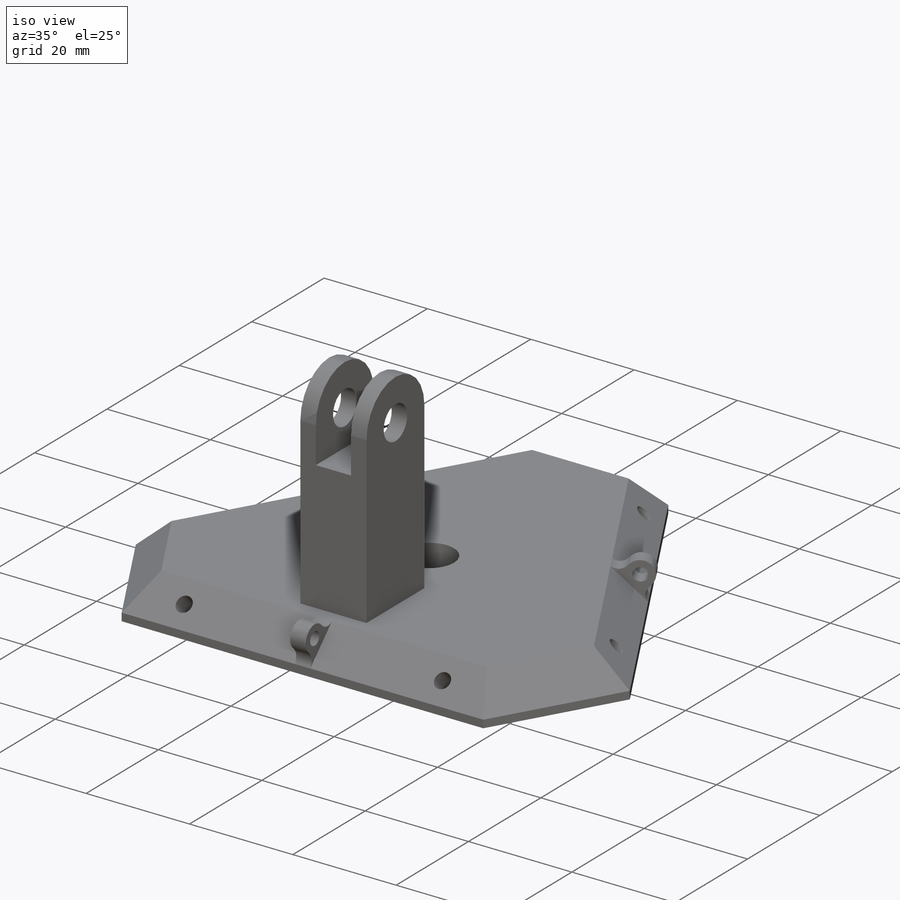
[diagram: iso view]
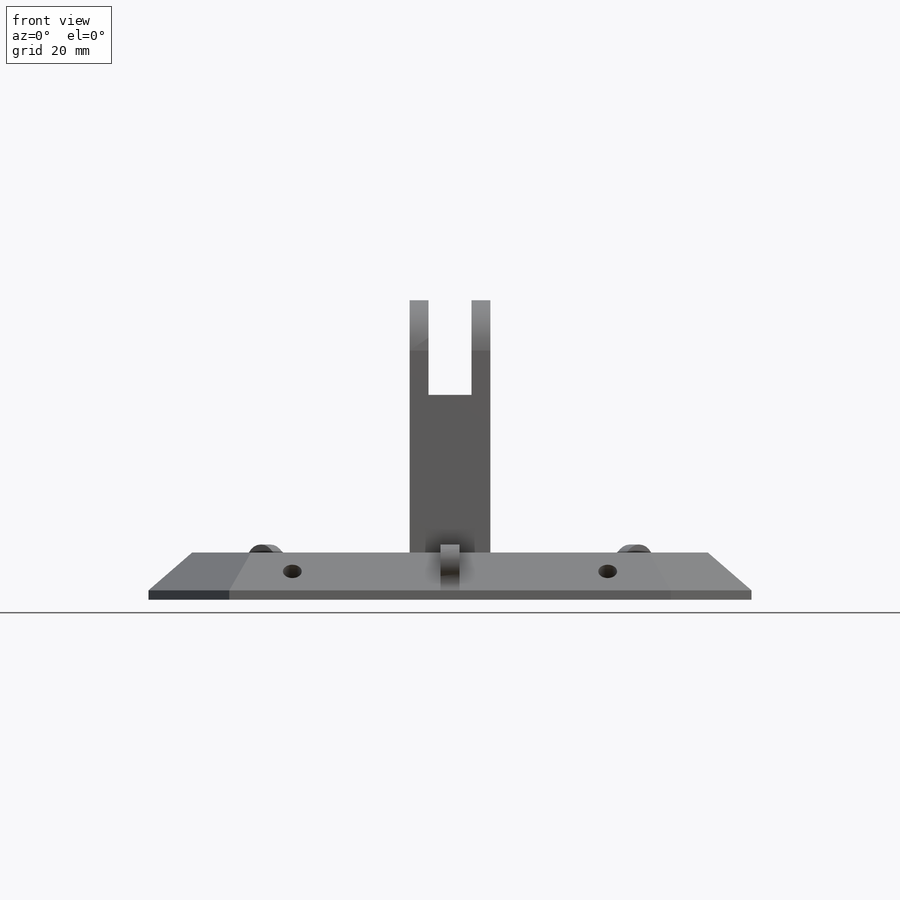
[diagram: front view]
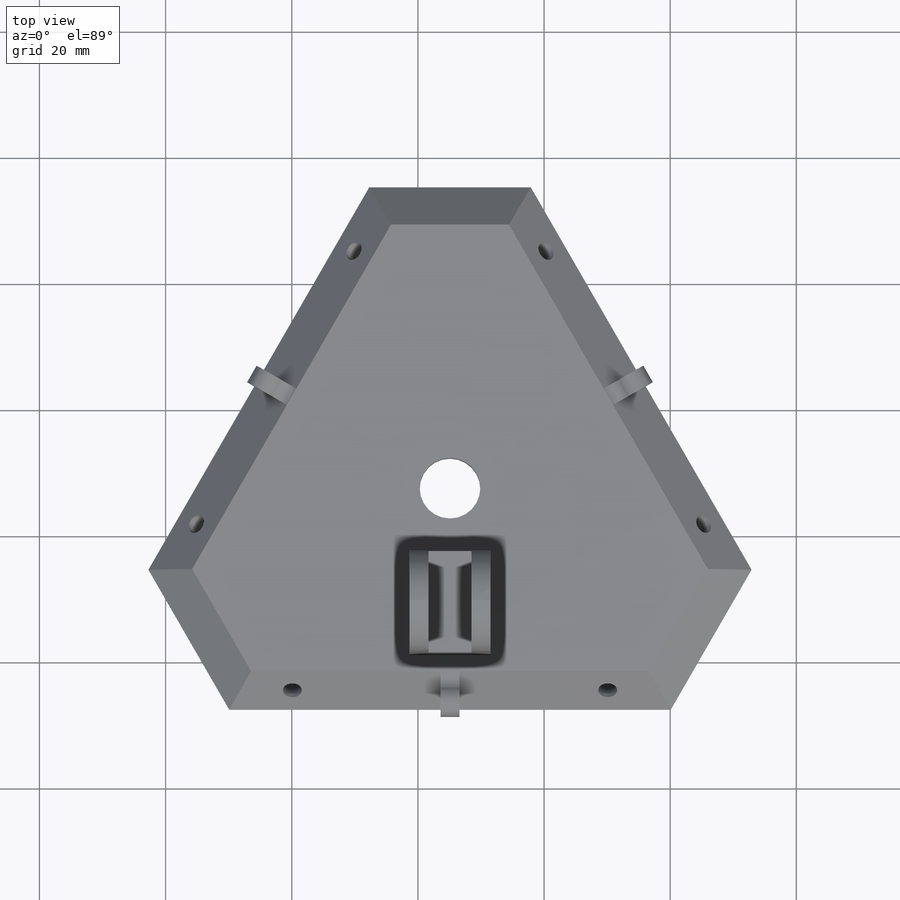
[diagram: top view]
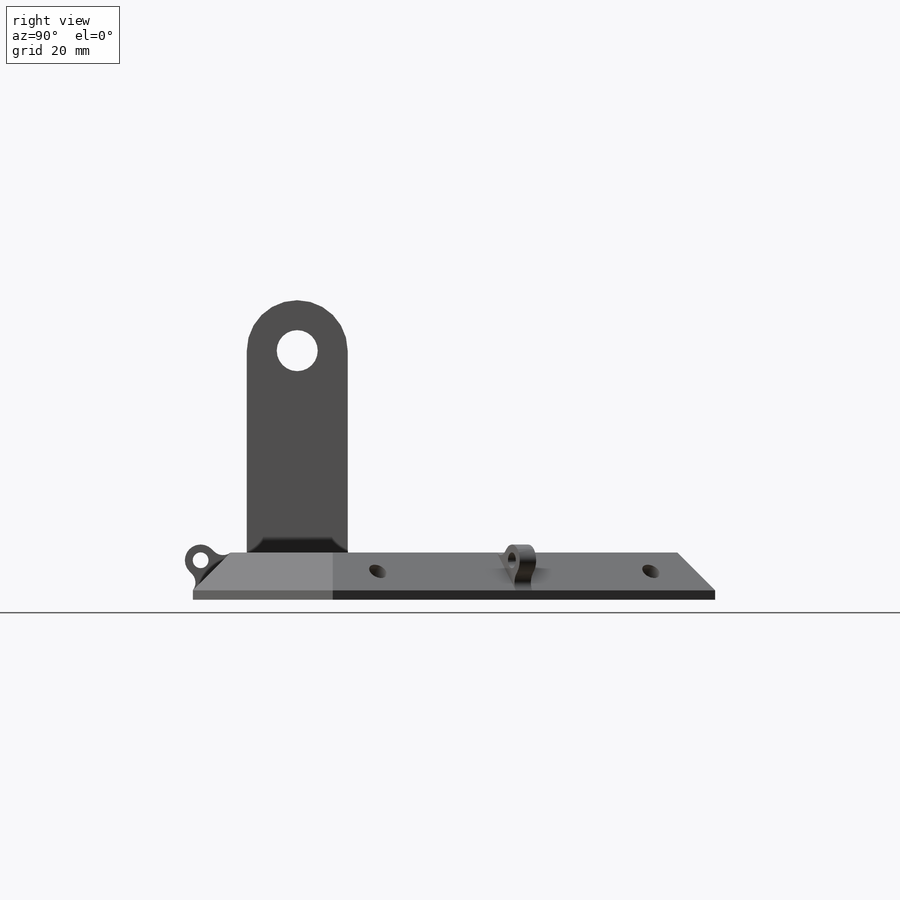
[diagram: right view]
SOLIDWORKS PART (.sldprt)
format: sldprt  version: not decoded by parser v0  size: 508,928 bytes
history: native  units: mm
features: sketch x12, cut_extrude x8, fillet x5, extrude x4, plane x2, mirror x2, material x1, chamfer x1 (+13 scaffold rows collapsed)
feature tree (48):
  scaffold x13  (default folders/planes/origin — collapsed)
  material  "Material <not specified>"
  sketch  "Sketch1"  dims[D1=9.6mm D2=50.0mm D4=50.0mm D5=50.0mm D6=50.0mm D7=70.0mm D8=70.0mm D9=70.0mm D3=10.0mm]
  extrude  "Boss-Extrude1"  Depth=7.5mm
  chamfer  "Chamfer2"  Distance=6mm Angle=45deg
  sketch  "Sketch4"  dims[D2=3.0mm D1=25.0mm]
  cut_extrude  "Cut-Extrude1"  [1 undecoded]
  sketch  "Sketch5"  dims[D1=5.5mm]
  cut_extrude  "Cut-Extrude2"  Depth=10mm
  sketch  "Sketch7"  dims[D2=3.0mm D1=25.0mm]
  cut_extrude  "Cut-Extrude3"  Depth=10mm
  sketch  "Sketch8"  dims[D1=5.5mm]
  cut_extrude  "Cut-Extrude4"  Depth=10mm
  sketch  "Sketch9"  dims[D2=3.0mm D1=25.0mm]
  sketch  "Sketch10"  dims[D1=5.5mm]
  cut_extrude  "Cut-Extrude5"  Depth=10mm
  cut_extrude  "Cut-Extrude6"  Depth=10mm
  sketch  "Sketch13"  dims[D1=3.0mm D2=5.0mm]
  extrude  "Boss-Extrude2"  Depth=5mm
  sketch  "Sketch14"  dims[D1=2.5mm]
  cut_extrude  "Cut-Extrude7"  Depth=5mm
  fillet  "Fillet1"  Radius=2.5mm
  fillet  "Fillet2"  Radius=2mm
  plane  "Plane1"
  mirror  "Mirror4"
  fillet  "Fillet3"  Radius=2mm
  plane  "Plane2"
  mirror  "Mirror6"
  fillet  "Fillet4"  Radius=2mm
  sketch  "Sketch15"  dims[D1=16.0mm D2=21.65mm D3=3.0mm D4=3.4mm]
  extrude  "Boss-Extrude3"  Depth=40mm
  sketch  "Sketch16"  dims[D1=6.5mm D2=~6.907481mm]
  cut_extrude  "Cut-Extrude8"  [1 undecoded]
  fillet  "Fillet5"  Radius=8mm
  sketch  "Sketch17"
  extrude  "Boss-Extrude4"  Depth=25mm
decode coverage: 27 of 32 modeling features carry decoded parameters
note: ~ marks probable driven/reference dimensions
note: 2 parameter values undecoded
note: suppression state not decoded; provenance and decode notes live in map.json
